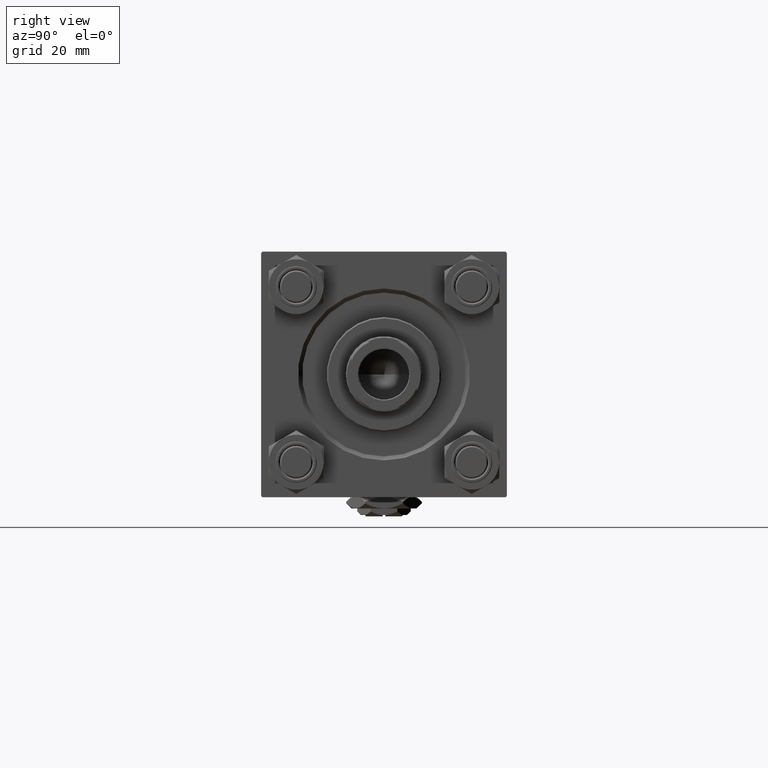
[diagram: clean part render]
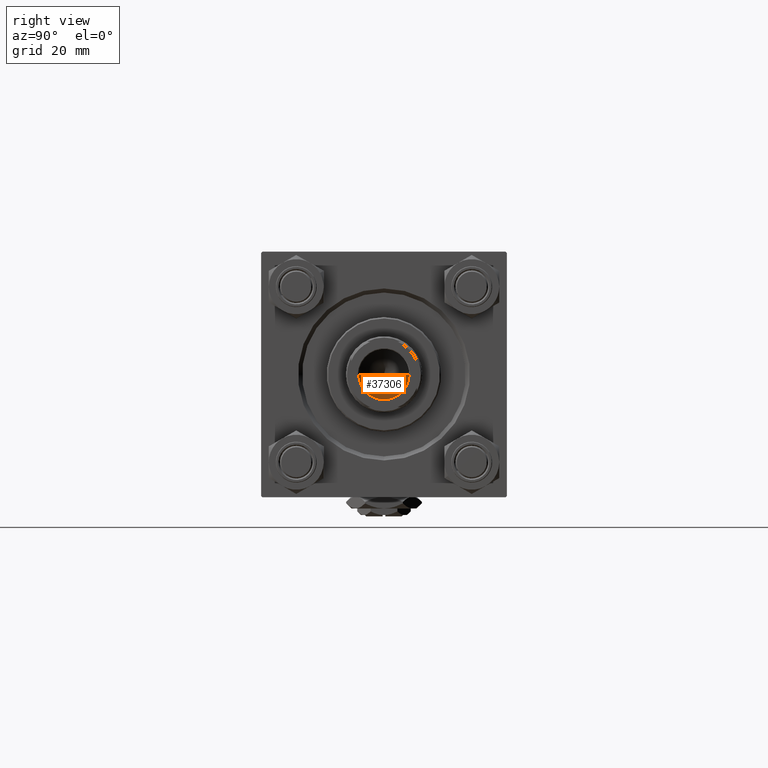
[diagram: same view with one face highlighted and labeled with its STEP entity id]
A machine part, right view. The second image highlights one B-rep face of the part: STEP entity #37306.
In plain terms, the highlighted conical surface has half-angle 59 deg.
Its self-contained STEP definition (entity closure, byte-faithful):
#296 = VERTEX_POINT ( 'NONE', #46088 ) ;
#3282 = AXIS2_PLACEMENT_3D ( 'NONE', #45441, #29687, #9511 ) ;
#3414 = CARTESIAN_POINT ( 'NONE',  ( -9.249999999999992895, 1.132798289211300712E-15, 114.9999999999999858 ) ) ;
#3673 = LINE ( 'NONE', #3414, #44108 ) ;
#6261 = DIRECTION ( 'NONE',  ( 1.000000000000000000, 0.000000000000000000, 0.000000000000000000 ) ) ;
#6425 = ORIENTED_EDGE ( 'NONE', *, *, #17977, .F. ) ;
#6444 = VECTOR ( 'NONE', #36892, 1000.000000000000000 ) ;
#8877 = CARTESIAN_POINT ( 'NONE',  ( -9.769621978240258809E-15, 0.000000000000000000, 109.4420392739950501 ) ) ;
#8982 = FACE_OUTER_BOUND ( 'NONE', #41259, .T. ) ;
#9356 = LINE ( 'NONE', #12765, #6444 ) ;
#9511 = DIRECTION ( 'NONE',  ( 1.000000000000000000, 0.000000000000000000, 0.000000000000000000 ) ) ;
#12765 = CARTESIAN_POINT ( 'NONE',  ( 9.249999999999992895, 0.000000000000000000, 114.9999999999999858 ) ) ;
#17977 = EDGE_CURVE ( 'NONE', #26129, #51871, #3673, .T. ) ;
#19255 = EDGE_CURVE ( 'NONE', #26129, #296, #9356, .T. ) ;
#26129 = VERTEX_POINT ( 'NONE', #8877 ) ;
#28758 = EDGE_CURVE ( 'NONE', #296, #51871, #37055, .T. ) ;
#29687 = DIRECTION ( 'NONE',  ( -0.000000000000000000, -0.000000000000000000, 1.000000000000000000 ) ) ;
#34459 = CARTESIAN_POINT ( 'NONE',  ( -9.249999999999992895, 1.132798289211300712E-15, 114.9999999999999858 ) ) ;
#36184 = AXIS2_PLACEMENT_3D ( 'NONE', #46127, #42195, #6261 ) ;
#36892 = DIRECTION ( 'NONE',  ( 0.8571673007021117785, 0.000000000000000000, 0.5150380749100550437 ) ) ;
#37055 = CIRCLE ( 'NONE', #36184, 9.249999999999992895 ) ;
#37306 = ADVANCED_FACE ( 'NONE', ( #8982 ), #45128, .F. ) ;
#37778 = ORIENTED_EDGE ( 'NONE', *, *, #28758, .T. ) ;
#38520 = ORIENTED_EDGE ( 'NONE', *, *, #19255, .T. ) ;
#41259 = EDGE_LOOP ( 'NONE', ( #6425, #38520, #37778 ) ) ;
#42195 = DIRECTION ( 'NONE',  ( -0.000000000000000000, -0.000000000000000000, 1.000000000000000000 ) ) ;
#44061 = DIRECTION ( 'NONE',  ( -0.8571673007021117785, 1.049727191138617956E-16, 0.5150380749100550437 ) ) ;
#44108 = VECTOR ( 'NONE', #44061, 1000.000000000000000 ) ;
#45128 = CONICAL_SURFACE ( 'NONE', #3282, 9.249999999999992895, 1.029744258676653423 ) ;
#45441 = CARTESIAN_POINT ( 'NONE',  ( 0.000000000000000000, 0.000000000000000000, 114.9999999999999858 ) ) ;
#46088 = CARTESIAN_POINT ( 'NONE',  ( 9.249999999999992895, 0.000000000000000000, 114.9999999999999858 ) ) ;
#46127 = CARTESIAN_POINT ( 'NONE',  ( 0.000000000000000000, 0.000000000000000000, 114.9999999999999858 ) ) ;
#51871 = VERTEX_POINT ( 'NONE', #34459 ) ;